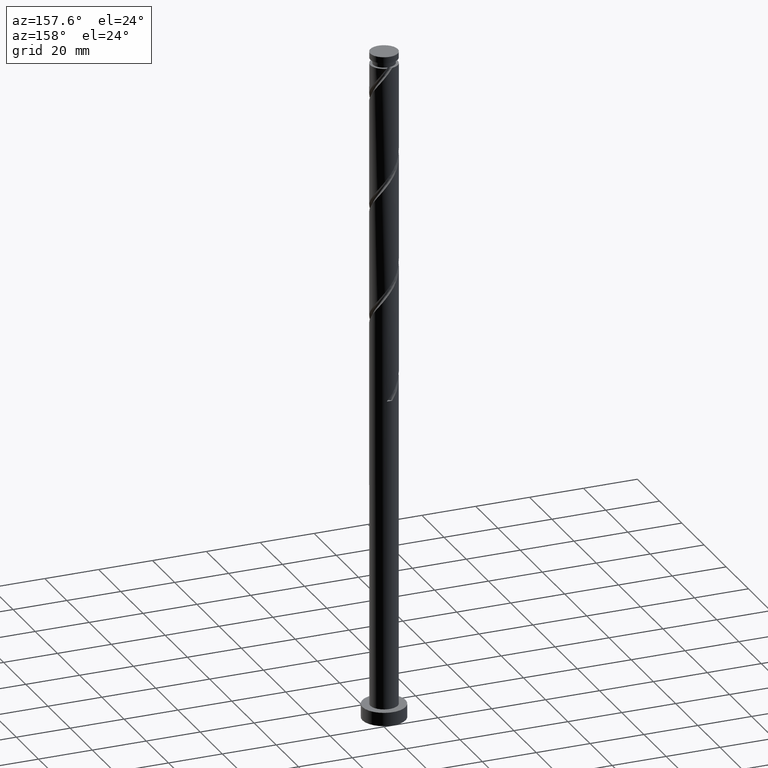
[diagram: clean part render]
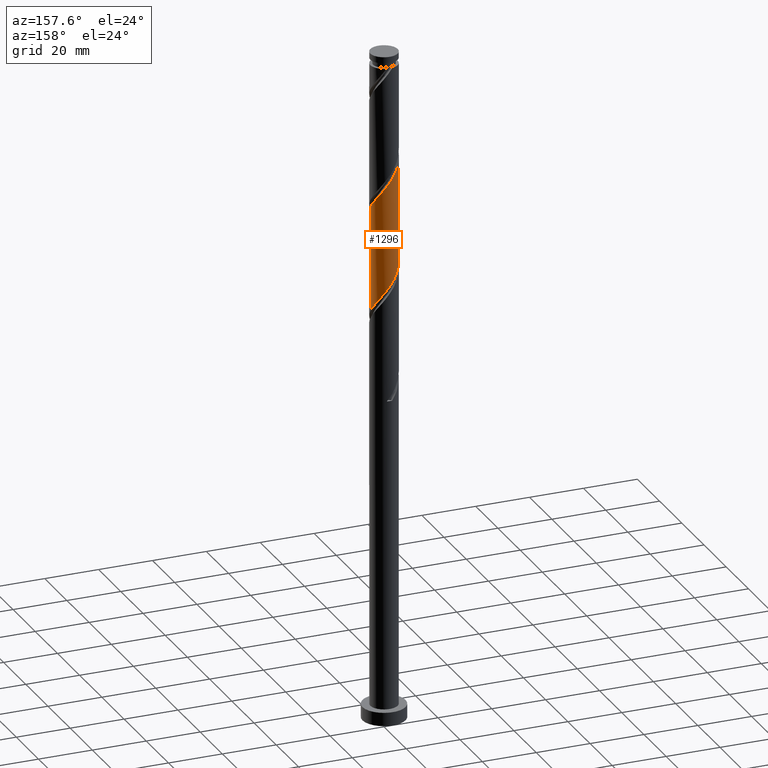
[diagram: same view with one face highlighted and labeled with its STEP entity id]
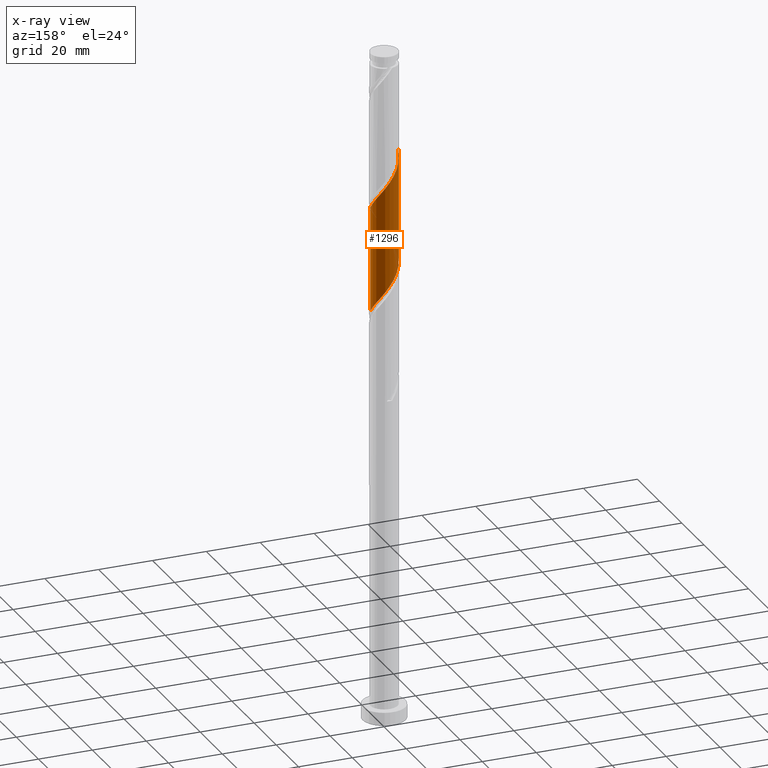
[diagram: x-ray of the same camera — body ghosted, the highlighted face saturated]
A machine part, auxiliary view. The second image highlights one B-rep face of the part: STEP entity #1296.
The next image is the same camera in x-ray: the body ghosted, the highlighted face saturated — about 0% of this face is hidden behind the body in this view.
In plain terms, the highlighted cylindrical surface (edge-blend (fillet) strip) has radius 5.1 mm, axis along (-0, -0, -1).
Its self-contained STEP definition (entity closure, byte-faithful):
#20 = CARTESIAN_POINT ( 'NONE',  ( 0.8294266765015260168, 5.070061594254859472, 201.5757986757627691 ) ) ;
#29 = CARTESIAN_POINT ( 'NONE',  ( -2.741237939645619903, 4.345007219726788605, 206.3834909834550615 ) ) ;
#34 = EDGE_CURVE ( 'NONE', #1412, #328, #923, .T. ) ;
#44 = CARTESIAN_POINT ( 'NONE',  ( -5.099999999999999645, 0.2028429647175275796, 173.7933957898678443 ) ) ;
#52 = AXIS2_PLACEMENT_3D ( 'NONE', #311, #1695, #1533 ) ;
#82 = CARTESIAN_POINT ( 'NONE',  ( 2.741237939645618571, 4.345007219726778835, 159.9091320090961119 ) ) ;
#96 = ORIENTED_EDGE ( 'NONE', *, *, #1264, .F. ) ;
#98 = CARTESIAN_POINT ( 'NONE',  ( -5.100000000000001421, 0.000000000000000000, 250.0000000000000000 ) ) ;
#122 = CARTESIAN_POINT ( 'NONE',  ( 4.933118798739816846, 1.434507615438204375, 155.1014397014038195 ) ) ;
#157 = CARTESIAN_POINT ( 'NONE',  ( -1.621754257993613724, 4.874770385147393803, 204.7809268808909735 ) ) ;
#167 = EDGE_LOOP ( 'NONE', ( #829, #411, #1593, #96 ) ) ;
#169 = CARTESIAN_POINT ( 'NONE',  ( 4.313327225042897339, 2.721251228700473757, 195.9668243167884611 ) ) ;
#177 = CARTESIAN_POINT ( 'NONE',  ( -3.982907504008063704, 3.244983974651746816, 169.5245166244807251 ) ) ;
#180 = FACE_OUTER_BOUND ( 'NONE', #167, .T. ) ;
#181 = CARTESIAN_POINT ( 'NONE',  ( 5.034708694974688648, 1.022341204283935046, 193.5629781629423007 ) ) ;
#189 = CARTESIAN_POINT ( 'NONE',  ( -3.090595955085188695, 4.103862792984370067, 167.9219525219166371 ) ) ;
#207 = CARTESIAN_POINT ( 'NONE',  ( -4.839227820526198265, 1.609929843516564985, 171.9283627783269139 ) ) ;
#210 = EDGE_CURVE ( 'NONE', #350, #1198, #485, .T. ) ;
#216 = VECTOR ( 'NONE', #1255, 1000.000000000000000 ) ;
#222 = CARTESIAN_POINT ( 'NONE',  ( -0.2107032813988129749, 5.095645604553732610, 163.9155422655063887 ) ) ;
#238 = CARTESIAN_POINT ( 'NONE',  ( 5.100000000000001421, -6.161846675714157688E-15, 153.2242333721675323 ) ) ;
#283 = CARTESIAN_POINT ( 'NONE',  ( 0.4080201137038957371, 5.121229614852613743, 163.1142602142243447 ) ) ;
#287 = CARTESIAN_POINT ( 'NONE',  ( 5.100000000000001421, 6.245698675651502811E-16, 250.0000000000000000 ) ) ;
#301 = CARTESIAN_POINT ( 'NONE',  ( -0.4080201137038926285, 5.121229614852623513, 203.1783627783268855 ) ) ;
#311 = CARTESIAN_POINT ( 'NONE',  ( 0.000000000000000000, 0.000000000000000000, 250.0000000000000000 ) ) ;
#319 = CARTESIAN_POINT ( 'NONE',  ( -5.100000000000006750, 0.4144078365389466945, 212.5286888830354712 ) ) ;
#328 = VERTEX_POINT ( 'NONE', #1764 ) ;
#350 = VERTEX_POINT ( 'NONE', #770 ) ;
#387 = LINE ( 'NONE', #98, #1654 ) ;
#411 = ORIENTED_EDGE ( 'NONE', *, *, #1746, .T. ) ;
#450 = CARTESIAN_POINT ( 'NONE',  ( -4.933118798739824840, 1.434507615438210371, 211.1911832911474107 ) ) ;
#475 = CARTESIAN_POINT ( 'NONE',  ( -1.424048439806746780, 4.897150808488950346, 165.5181063680705336 ) ) ;
#485 =( BOUNDED_CURVE ( )  B_SPLINE_CURVE ( 2, ( #1449, #1715, #1159, #181, #845, #577, #169, #882, #748, #1426, #1285, #1292, #1553, #20, #1706, #301, #988, #157, #601, #29, #1726, #1442, #1303, #723, #608, #450, #1575, #319, #742 ),
 .UNSPECIFIED., .F., .T. ) 
 B_SPLINE_CURVE_WITH_KNOTS ( ( 3, 2, 2, 2, 2, 2, 2, 2, 2, 2, 2, 2, 2, 2, 3 ),
 ( 0.4295271625973834939, 0.4326923076923077094, 0.4423076923076922906, 0.4519230769230768718, 0.4615384615384615641, 0.4711538461538461453, 0.4807692307692307265, 0.4903846153846154188, 0.5000000000000000000, 0.5096153846153845812, 0.5192307692307691624, 0.5288461538461538547, 0.5384615384615384359, 0.5480769230769231282, 0.5545271625973831053 ),
 .UNSPECIFIED. ) 
 CURVE ( )  GEOMETRIC_REPRESENTATION_ITEM ( )  RATIONAL_B_SPLINE_CURVE ( ( 0.9061636035682829604, 0.9069090390690716097, 0.9090909090909279344, 0.9024626128164316974, 0.9090909090909279344, 0.9024626128164316974, 0.9090909090909279344, 0.9024626128164316974, 0.9090909090909279344, 0.9024626128164316974, 0.9090909090909279344, 0.9024626128164316974, 0.9090909090909279344, 0.9024626128164316974, 0.9090909090909279344, 0.9024626128164316974, 0.9090909090909279344, 0.9024626128164316974, 0.9090909090909279344, 0.9024626128164316974, 0.9090909090909279344, 0.9024626128164316974, 0.9090909090909279344, 0.9024626128164316974, 0.9090909090909279344, 0.9024626128164316974, 0.9090909090909279344, 0.9046444828382882442, 0.9061636035682827384 ) ) 
 REPRESENTATION_ITEM ( '' )  );
#511 = CARTESIAN_POINT ( 'NONE',  ( -5.100000000000009415, 2.632245181858457100E-15, 213.0683896203837548 ) ) ;
#577 = CARTESIAN_POINT ( 'NONE',  ( 4.643746946077720317, 2.197518482749192703, 195.1655422655064456 ) ) ;
#601 = CARTESIAN_POINT ( 'NONE',  ( -2.181496098819617480, 4.609888802437091648, 205.5822089321731312 ) ) ;
#608 = CARTESIAN_POINT ( 'NONE',  ( -4.689794993926371447, 2.003951824506580159, 210.3899012398654520 ) ) ;
#625 = CARTESIAN_POINT ( 'NONE',  ( -2.018670203111971428, 4.724240022723048327, 166.3193884193525491 ) ) ;
#664 = CARTESIAN_POINT ( 'NONE',  ( 3.221324387942766876, 3.953867623940536369, 159.1078499578140679 ) ) ;
#676 = DIRECTION ( 'NONE',  ( -0.000000000000000000, -0.000000000000000000, -1.000000000000000000 ) ) ;
#723 = CARTESIAN_POINT ( 'NONE',  ( -4.446471189112914502, 2.573396033574949726, 209.5886191885833227 ) ) ;
#742 = CARTESIAN_POINT ( 'NONE',  ( -5.100000000000009415, 2.632245181858457100E-15, 213.0683896203837548 ) ) ;
#748 = CARTESIAN_POINT ( 'NONE',  ( 3.536751729546635303, 3.674423383818063105, 197.5693884193526344 ) ) ;
#752 = CARTESIAN_POINT ( 'NONE',  ( -2.554633079098580062, 4.414051407853708753, 167.1206704706346784 ) ) ;
#770 = CARTESIAN_POINT ( 'NONE',  ( 5.100000000000009415, 1.435770099195522449E-15, 192.2350562870504120 ) ) ;
#776 = CARTESIAN_POINT ( 'NONE',  ( 1.014887185848755369, 4.998000000000000220, 162.3129781629423292 ) ) ;
#829 = ORIENTED_EDGE ( 'NONE', *, *, #210, .F. ) ;
#845 = CARTESIAN_POINT ( 'NONE',  ( 4.839227820526208923, 1.609929843516562320, 194.3642602142244300 ) ) ;
#871 = CARTESIAN_POINT ( 'NONE',  ( -4.643746946077711435, 2.197518482749192703, 171.1270807270448415 ) ) ;
#882 = CARTESIAN_POINT ( 'NONE',  ( 3.982907504008072141, 3.244983974651748593, 196.7681063680704767 ) ) ;
#891 = CARTESIAN_POINT ( 'NONE',  ( -3.536751729546626866, 3.674423383818059108, 168.7232345731986811 ) ) ;
#923 =( BOUNDED_CURVE ( )  B_SPLINE_CURVE ( 2, ( #1058, #44, #1467, #1750, #207, #871, #1308, #177, #891, #189, #752, #625, #475, #1047, #222, #283, #776, #1774, #1362, #82, #664, #1349, #1077, #1399, #1648, #122, #1687, #1639, #238 ),
 .UNSPECIFIED., .F., .T. ) 
 B_SPLINE_CURVE_WITH_KNOTS ( ( 3, 2, 2, 2, 2, 2, 2, 2, 2, 2, 2, 2, 2, 2, 3 ),
 ( 0.6795271625973834384, 0.6826923076923077094, 0.6923076923076922906, 0.7019230769230768718, 0.7115384615384615641, 0.7211538461538461453, 0.7307692307692307265, 0.7403846153846154188, 0.7500000000000000000, 0.7596153846153845812, 0.7692307692307692735, 0.7788461538461538547, 0.7884615384615384359, 0.7980769230769231282, 0.8045271625973832164 ),
 .UNSPECIFIED. ) 
 CURVE ( )  GEOMETRIC_REPRESENTATION_ITEM ( )  RATIONAL_B_SPLINE_CURVE ( ( 0.9061636035682767432, 0.9069090390690655035, 0.9090909090909219392, 0.9024626128164254801, 0.9090909090909219392, 0.9024626128164254801, 0.9090909090909219392, 0.9024626128164254801, 0.9090909090909219392, 0.9024626128164254801, 0.9090909090909219392, 0.9024626128164254801, 0.9090909090909219392, 0.9024626128164254801, 0.9090909090909219392, 0.9024626128164254801, 0.9090909090909219392, 0.9024626128164254801, 0.9090909090909219392, 0.9024626128164254801, 0.9090909090909219392, 0.9024626128164254801, 0.9090909090909219392, 0.9024626128164254801, 0.9090909090909219392, 0.9024626128164254801, 0.9090909090909219392, 0.9046444828382820269, 0.9061636035682766321 ) ) 
 REPRESENTATION_ITEM ( '' )  );
#988 = CARTESIAN_POINT ( 'NONE',  ( -1.014887185848753592, 4.998000000000007326, 203.9796448296090148 ) ) ;
#1047 = CARTESIAN_POINT ( 'NONE',  ( -0.8294266765015214649, 5.070061594254849702, 164.7168243167884327 ) ) ;
#1058 = CARTESIAN_POINT ( 'NONE',  ( -5.099999999999998757, 4.217574666386874631E-15, 174.0575667055008182 ) ) ;
#1077 = CARTESIAN_POINT ( 'NONE',  ( 4.073941012676410622, 3.068062030864615597, 157.5052858552500368 ) ) ;
#1159 = CARTESIAN_POINT ( 'NONE',  ( 5.083890084957960021, 0.4050451876843518262, 192.7616961116602567 ) ) ;
#1198 = VERTEX_POINT ( 'NONE', #511 ) ;
#1255 = DIRECTION ( 'NONE',  ( -0.000000000000000000, -0.000000000000000000, -1.000000000000000000 ) ) ;
#1264 = EDGE_CURVE ( 'NONE', #1198, #1412, #387, .T. ) ;
#1285 = CARTESIAN_POINT ( 'NONE',  ( 2.554633079098586723, 4.414051407853714970, 199.1719525219166940 ) ) ;
#1291 = CARTESIAN_POINT ( 'NONE',  ( -5.099999999999998757, 4.217574666386874631E-15, 174.0575667055008182 ) ) ;
#1292 = CARTESIAN_POINT ( 'NONE',  ( 2.018670203111976313, 4.724240022723055432, 199.9732345731986527 ) ) ;
#1296 = ADVANCED_FACE ( 'NONE', ( #180 ), #1417, .T. ) ;
#1303 = CARTESIAN_POINT ( 'NONE',  ( -4.073941012676415951, 3.068062030864624035, 208.7873371373013356 ) ) ;
#1308 = CARTESIAN_POINT ( 'NONE',  ( -4.313327225042888458, 2.721251228700470648, 170.3257986757628260 ) ) ;
#1349 = CARTESIAN_POINT ( 'NONE',  ( 3.701410836239911184, 3.562728028154290794, 158.3065679065319955 ) ) ;
#1362 = CARTESIAN_POINT ( 'NONE',  ( 2.181496098819619256, 4.609888802437081878, 160.7104140603781559 ) ) ;
#1399 = CARTESIAN_POINT ( 'NONE',  ( 4.446471189112908284, 2.573396033574939512, 156.7040038039678791 ) ) ;
#1412 = VERTEX_POINT ( 'NONE', #1291 ) ;
#1417 = CYLINDRICAL_SURFACE ( 'NONE', #52, 5.100000000000001421 ) ;
#1426 = CARTESIAN_POINT ( 'NONE',  ( 3.090595955085197577, 4.103862792984373620, 198.3706704706345931 ) ) ;
#1442 = CARTESIAN_POINT ( 'NONE',  ( -3.701410836239916069, 3.562728028154297455, 207.9860550860191779 ) ) ;
#1449 = CARTESIAN_POINT ( 'NONE',  ( 5.100000000000008527, 1.435770099195522449E-15, 192.2350562870504120 ) ) ;
#1467 = CARTESIAN_POINT ( 'NONE',  ( -5.083890084957950251, 0.4050451876843553234, 173.5309268808910304 ) ) ;
#1533 = DIRECTION ( 'NONE',  ( -1.000000000000000000, 0.000000000000000000, 0.000000000000000000 ) ) ;
#1553 = CARTESIAN_POINT ( 'NONE',  ( 1.424048439806753663, 4.897150808488956564, 200.7745166244808104 ) ) ;
#1575 = CARTESIAN_POINT ( 'NONE',  ( -5.033095136840526784, 0.8233792221767199937, 211.9924653424295116 ) ) ;
#1593 = ORIENTED_EDGE ( 'NONE', *, *, #34, .F. ) ;
#1639 = CARTESIAN_POINT ( 'NONE',  ( 5.099999999999999645, 0.4144078365389362584, 153.7639341095158727 ) ) ;
#1648 = CARTESIAN_POINT ( 'NONE',  ( 4.689794993926362565, 2.003951824506574830, 155.9027217526858919 ) ) ;
#1654 = VECTOR ( 'NONE', #676, 1000.000000000000000 ) ;
#1662 = LINE ( 'NONE', #287, #216 ) ;
#1687 = CARTESIAN_POINT ( 'NONE',  ( 5.033095136840518791, 0.8233792221767167741, 154.3001576501217471 ) ) ;
#1695 = DIRECTION ( 'NONE',  ( -0.000000000000000000, -0.000000000000000000, -1.000000000000000000 ) ) ;
#1706 = CARTESIAN_POINT ( 'NONE',  ( 0.2107032813988189979, 5.095645604553743269, 202.3770807270448984 ) ) ;
#1715 = CARTESIAN_POINT ( 'NONE',  ( 5.100000000000008527, 0.2028429647175283568, 192.4992272026833575 ) ) ;
#1726 = CARTESIAN_POINT ( 'NONE',  ( -3.221324387942768652, 3.953867623940543918, 207.1847730347372192 ) ) ;
#1746 = EDGE_CURVE ( 'NONE', #350, #328, #1662, .T. ) ;
#1750 = CARTESIAN_POINT ( 'NONE',  ( -5.034708694974681542, 1.022341204283935268, 172.7296448296089011 ) ) ;
#1764 = CARTESIAN_POINT ( 'NONE',  ( 5.100000000000001421, -6.161846675714157688E-15, 153.2242333721675323 ) ) ;
#1774 = CARTESIAN_POINT ( 'NONE',  ( 1.621754257993614612, 4.874770385147385809, 161.5116961116602567 ) ) ;